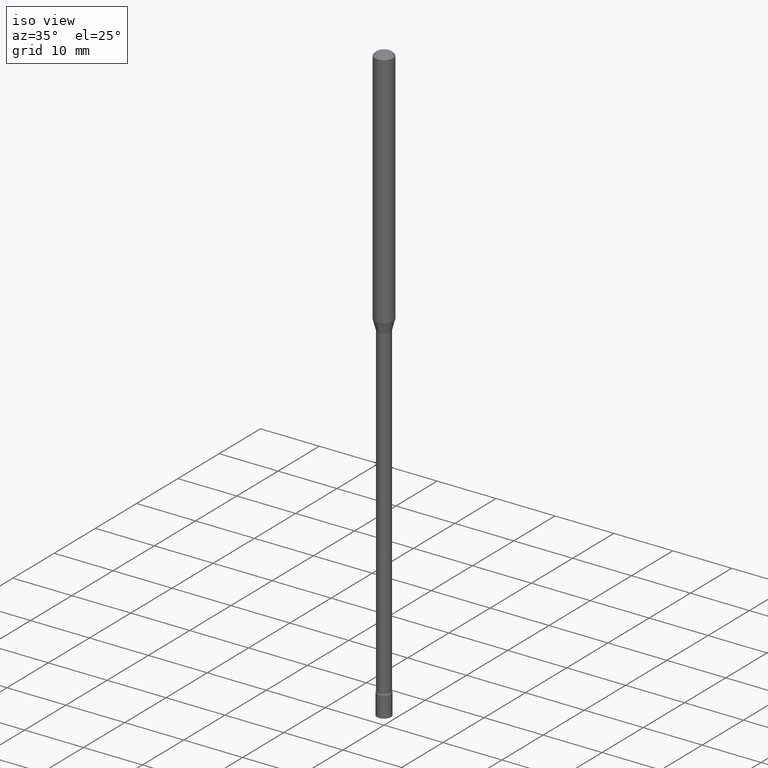
[diagram: clean part render]
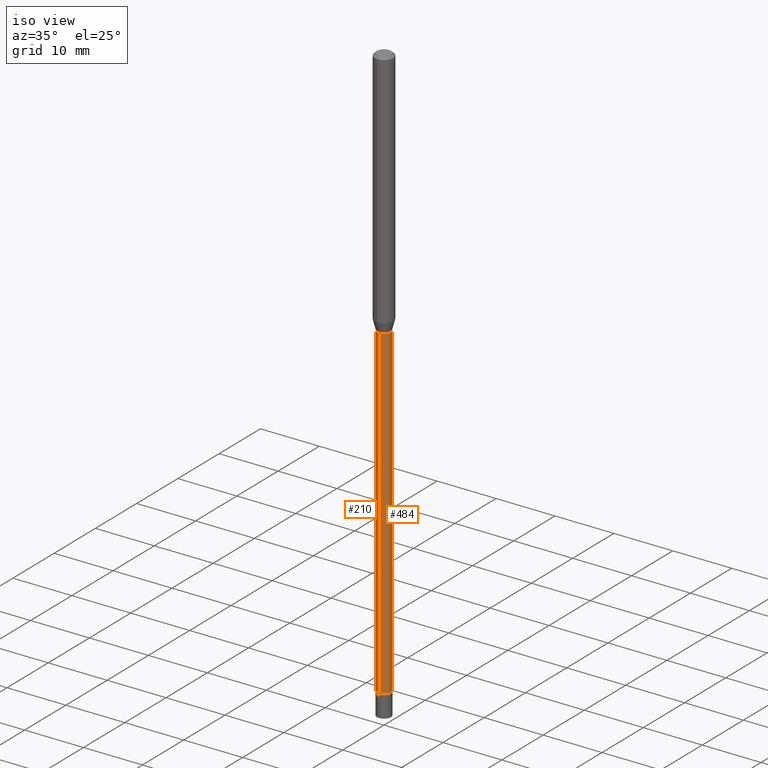
[diagram: same view with one multi-face feature highlighted, each face labeled with its STEP entity id]
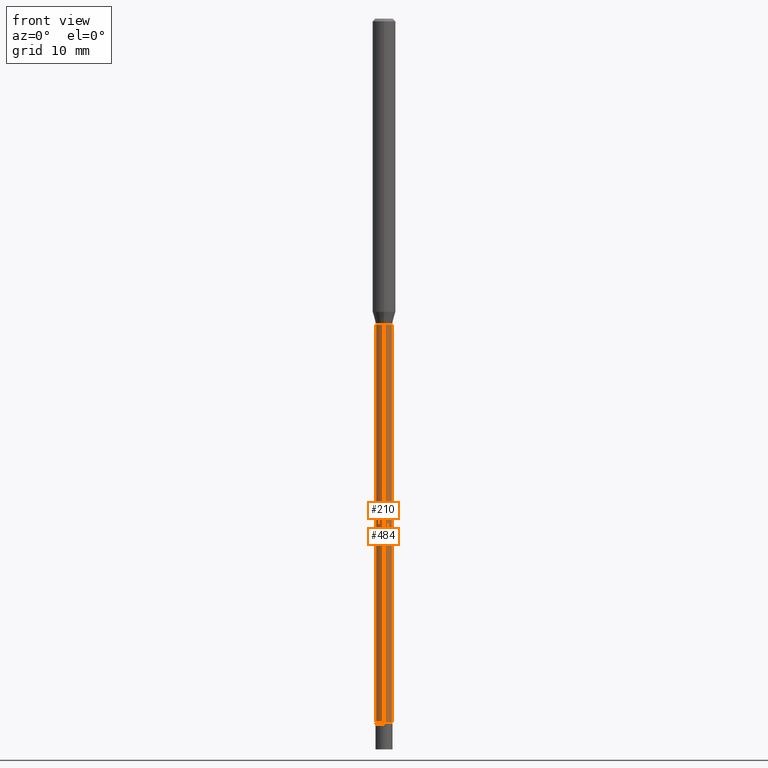
[diagram: same view with one multi-face feature highlighted, each face labeled with its STEP entity id]
A machine part, iso view. The highlighted faces form ONE feature: a constant-radius fillet chain: 2 tangent blend faces with common blend radius 1.11 mm. The faces share edges in the B-rep.
A second angle (front view) of the same feature is appended — it is thin or edge-on in the first view.
Their STEP definitions:
[1] entity #484 (Cylinder):
#16 = CARTESIAN_POINT ( 'NONE',  ( 4.100963720950633802E-29, -5.855163138318515071E-15, -1.676974787463810790 ) ) ;
#25 = AXIS2_PLACEMENT_3D ( 'NONE', #334, #371, #404 ) ;
#27 = CARTESIAN_POINT ( 'NONE',  ( 9.418108784244767125E-29, -1.344673280196705640E-14, -3.851273030308292267 ) ) ;
#29 = CARTESIAN_POINT ( 'NONE',  ( 3.105071755271645895E-16, 0.04370000000000012069, -1.525786976985433665E-16 ) ) ;
#37 = LINE ( 'NONE', #368, #500 ) ;
#47 = CYLINDRICAL_SURFACE ( 'NONE', #25, 0.04370000000000012069 ) ;
#53 = CARTESIAN_POINT ( 'NONE',  ( 3.204547738279003487E-16, 0.04369999999998679108, -3.851273030308292267 ) ) ;
#65 = CARTESIAN_POINT ( 'NONE',  ( -3.051554690148488471E-16, -0.04370000000000585916, -1.676974787463810568 ) ) ;
#71 = ORIENTED_EDGE ( 'NONE', *, *, #138, .T. ) ;
#73 = EDGE_CURVE ( 'NONE', #106, #188, #130, .T. ) ;
#85 = FACE_OUTER_BOUND ( 'NONE', #241, .T. ) ;
#106 = VERTEX_POINT ( 'NONE', #157 ) ;
#130 = CIRCLE ( 'NONE', #406, 0.04370000000000023865 ) ;
#138 = EDGE_CURVE ( 'NONE', #188, #306, #431, .T. ) ;
#148 = DIRECTION ( 'NONE',  ( -6.982962677686266711E-15, -1.000000000000000000, 6.251368406554377784E-15 ) ) ;
#157 = CARTESIAN_POINT ( 'NONE',  ( -3.051554690147972753E-16, -0.04370000000001368623, -3.851273030308292267 ) ) ;
#188 = VERTEX_POINT ( 'NONE', #53 ) ;
#191 = EDGE_CURVE ( 'NONE', #266, #306, #485, .T. ) ;
#203 = DIRECTION ( 'NONE',  ( -2.445453415046725890E-29, 3.491503379829358163E-15, 1.000000000000000000 ) ) ;
#227 = VECTOR ( 'NONE', #520, 39.37007874015748143 ) ;
#238 = DIRECTION ( 'NONE',  ( -2.445453415046726170E-29, 3.491503379829358558E-15, 1.000000000000000000 ) ) ;
#241 = EDGE_LOOP ( 'NONE', ( #475, #71, #274, #311 ) ) ;
#266 = VERTEX_POINT ( 'NONE', #65 ) ;
#274 = ORIENTED_EDGE ( 'NONE', *, *, #191, .F. ) ;
#306 = VERTEX_POINT ( 'NONE', #363 ) ;
#311 = ORIENTED_EDGE ( 'NONE', *, *, #494, .F. ) ;
#325 = DIRECTION ( 'NONE',  ( -6.982962677686265922E-15, -1.000000000000000000, 0.000000000000000000 ) ) ;
#334 = CARTESIAN_POINT ( 'NONE',  ( 0.000000000000000000, 0.000000000000000000, 0.000000000000000000 ) ) ;
#363 = CARTESIAN_POINT ( 'NONE',  ( 3.105071755272587598E-16, 0.04369999999999414630, -1.676974787463811012 ) ) ;
#368 = CARTESIAN_POINT ( 'NONE',  ( -3.051554690148906567E-16, -0.04370000000000012069, 1.525786976985433665E-16 ) ) ;
#371 = DIRECTION ( 'NONE',  ( -2.445453415046726170E-29, 3.491503379829358558E-15, 1.000000000000000000 ) ) ;
#385 = AXIS2_PLACEMENT_3D ( 'NONE', #16, #497, #148 ) ;
#404 = DIRECTION ( 'NONE',  ( -6.982962677686265922E-15, -1.000000000000000000, 3.491503379829358163E-15 ) ) ;
#406 = AXIS2_PLACEMENT_3D ( 'NONE', #27, #238, #325 ) ;
#431 = LINE ( 'NONE', #29, #227 ) ;
#475 = ORIENTED_EDGE ( 'NONE', *, *, #73, .T. ) ;
#484 = ADVANCED_FACE ( 'NONE', ( #85 ), #47, .T. ) ;
#485 = CIRCLE ( 'NONE', #385, 0.04370000000000000273 ) ;
#494 = EDGE_CURVE ( 'NONE', #106, #266, #37, .T. ) ;
#497 = DIRECTION ( 'NONE',  ( -2.445453415046726170E-29, 3.491503379829358558E-15, 1.000000000000000000 ) ) ;
#500 = VECTOR ( 'NONE', #203, 39.37007874015748143 ) ;
#520 = DIRECTION ( 'NONE',  ( -2.445453415046725890E-29, 3.491503379829358163E-15, 1.000000000000000000 ) ) ;
[2] entity #210 (Cylinder):
#14 = CARTESIAN_POINT ( 'NONE',  ( 0.000000000000000000, 0.000000000000000000, 0.000000000000000000 ) ) ;
#24 = EDGE_LOOP ( 'NONE', ( #55, #57, #505, #320 ) ) ;
#26 = CIRCLE ( 'NONE', #169, 0.04370000000000000273 ) ;
#29 = CARTESIAN_POINT ( 'NONE',  ( 3.105071755271645895E-16, 0.04370000000000012069, -1.525786976985433665E-16 ) ) ;
#30 = DIRECTION ( 'NONE',  ( -2.445453415046726170E-29, 3.491503379829358558E-15, 1.000000000000000000 ) ) ;
#37 = LINE ( 'NONE', #368, #500 ) ;
#53 = CARTESIAN_POINT ( 'NONE',  ( 3.204547738279003487E-16, 0.04369999999998679108, -3.851273030308292267 ) ) ;
#55 = ORIENTED_EDGE ( 'NONE', *, *, #138, .F. ) ;
#56 = DIRECTION ( 'NONE',  ( -2.445453415046726170E-29, 3.491503379829358558E-15, 1.000000000000000000 ) ) ;
#57 = ORIENTED_EDGE ( 'NONE', *, *, #296, .T. ) ;
#65 = CARTESIAN_POINT ( 'NONE',  ( -3.051554690148488471E-16, -0.04370000000000585916, -1.676974787463810568 ) ) ;
#105 = DIRECTION ( 'NONE',  ( -2.445453415046726170E-29, 3.491503379829358558E-15, 1.000000000000000000 ) ) ;
#106 = VERTEX_POINT ( 'NONE', #157 ) ;
#131 = CARTESIAN_POINT ( 'NONE',  ( 9.418108784244767125E-29, -1.344673280196705640E-14, -3.851273030308292267 ) ) ;
#138 = EDGE_CURVE ( 'NONE', #188, #306, #431, .T. ) ;
#143 = FACE_OUTER_BOUND ( 'NONE', #24, .T. ) ;
#152 = CIRCLE ( 'NONE', #433, 0.04370000000000023865 ) ;
#157 = CARTESIAN_POINT ( 'NONE',  ( -3.051554690147972753E-16, -0.04370000000001368623, -3.851273030308292267 ) ) ;
#169 = AXIS2_PLACEMENT_3D ( 'NONE', #237, #105, #384 ) ;
#188 = VERTEX_POINT ( 'NONE', #53 ) ;
#203 = DIRECTION ( 'NONE',  ( -2.445453415046725890E-29, 3.491503379829358163E-15, 1.000000000000000000 ) ) ;
#210 = ADVANCED_FACE ( 'NONE', ( #143 ), #415, .T. ) ;
#227 = VECTOR ( 'NONE', #520, 39.37007874015748143 ) ;
#232 = EDGE_CURVE ( 'NONE', #306, #266, #26, .T. ) ;
#237 = CARTESIAN_POINT ( 'NONE',  ( 4.100963720950633802E-29, -5.855163138318515071E-15, -1.676974787463810790 ) ) ;
#266 = VERTEX_POINT ( 'NONE', #65 ) ;
#281 = DIRECTION ( 'NONE',  ( -6.982962677686265922E-15, -1.000000000000000000, 0.000000000000000000 ) ) ;
#296 = EDGE_CURVE ( 'NONE', #188, #106, #152, .T. ) ;
#306 = VERTEX_POINT ( 'NONE', #363 ) ;
#310 = AXIS2_PLACEMENT_3D ( 'NONE', #14, #56, #341 ) ;
#320 = ORIENTED_EDGE ( 'NONE', *, *, #232, .F. ) ;
#341 = DIRECTION ( 'NONE',  ( -6.982962677686265922E-15, -1.000000000000000000, 3.491503379829358163E-15 ) ) ;
#363 = CARTESIAN_POINT ( 'NONE',  ( 3.105071755272587598E-16, 0.04369999999999414630, -1.676974787463811012 ) ) ;
#368 = CARTESIAN_POINT ( 'NONE',  ( -3.051554690148906567E-16, -0.04370000000000012069, 1.525786976985433665E-16 ) ) ;
#384 = DIRECTION ( 'NONE',  ( -6.982962677686266711E-15, -1.000000000000000000, 6.251368406554377784E-15 ) ) ;
#415 = CYLINDRICAL_SURFACE ( 'NONE', #310, 0.04370000000000012069 ) ;
#431 = LINE ( 'NONE', #29, #227 ) ;
#433 = AXIS2_PLACEMENT_3D ( 'NONE', #131, #30, #281 ) ;
#494 = EDGE_CURVE ( 'NONE', #106, #266, #37, .T. ) ;
#500 = VECTOR ( 'NONE', #203, 39.37007874015748143 ) ;
#505 = ORIENTED_EDGE ( 'NONE', *, *, #494, .T. ) ;
#520 = DIRECTION ( 'NONE',  ( -2.445453415046725890E-29, 3.491503379829358163E-15, 1.000000000000000000 ) ) ;